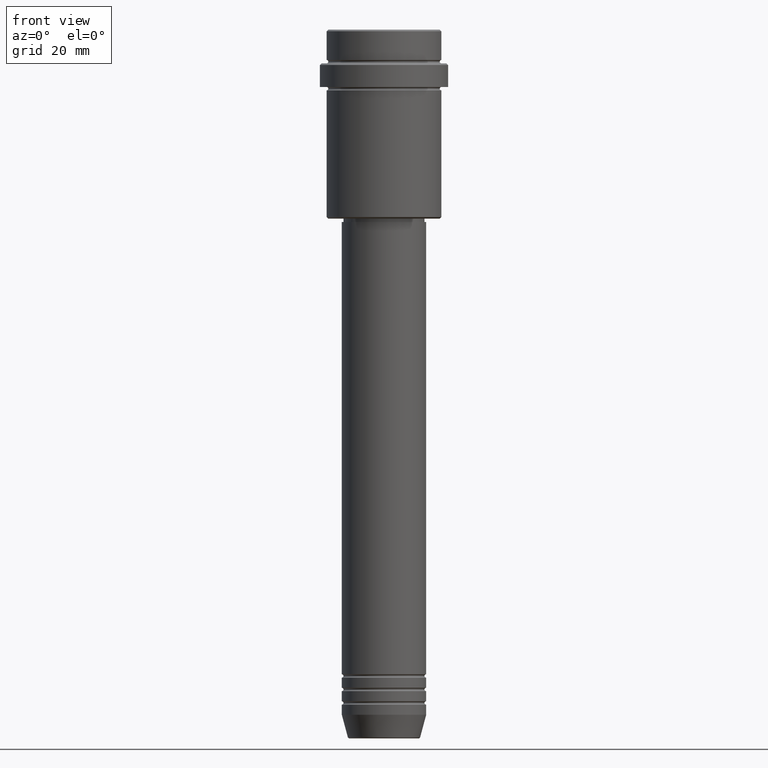
[diagram: clean part render]
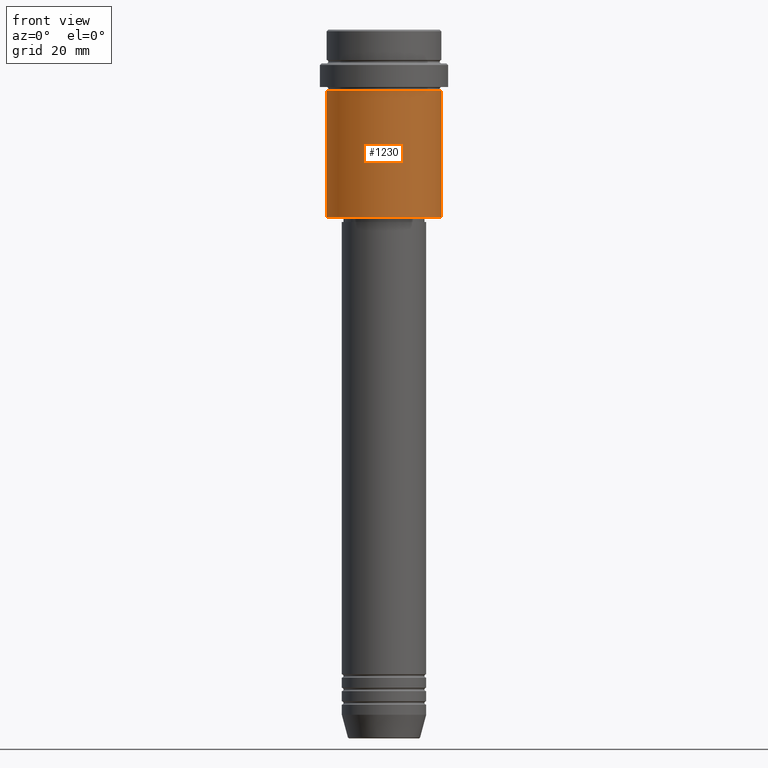
[diagram: same view with one face highlighted and labeled with its STEP entity id]
A machine part, front view. The second image highlights one B-rep face of the part: STEP entity #1230.
In plain terms, the highlighted cylindrical surface (partial cylindrical patch) has radius 17 mm, axis along (-0, -0, 1).
Its self-contained STEP definition (entity closure, byte-faithful):
#59 = VERTEX_POINT ( 'NONE', #499 ) ;
#76 = CARTESIAN_POINT ( 'NONE',  ( 16.99999999999997513, 0.000000000000000000, -18.00000000000000711 ) ) ;
#130 = DIRECTION ( 'NONE',  ( -0.000000000000000000, -0.000000000000000000, 1.000000000000000000 ) ) ;
#133 = DIRECTION ( 'NONE',  ( 1.000000000000000000, 0.000000000000000000, 0.000000000000000000 ) ) ;
#220 = ORIENTED_EDGE ( 'NONE', *, *, #851, .F. ) ;
#286 = CARTESIAN_POINT ( 'NONE',  ( 16.99999999999998579, 0.000000000000000000, 0.000000000000000000 ) ) ;
#298 = AXIS2_PLACEMENT_3D ( 'NONE', #1115, #130, #561 ) ;
#345 = AXIS2_PLACEMENT_3D ( 'NONE', #354, #1330, #133 ) ;
#354 = CARTESIAN_POINT ( 'NONE',  ( 0.000000000000000000, 0.000000000000000000, 0.000000000000000000 ) ) ;
#391 = CARTESIAN_POINT ( 'NONE',  ( -16.99999999999998579, 2.081899558550499096E-15, 0.000000000000000000 ) ) ;
#395 = LINE ( 'NONE', #286, #707 ) ;
#430 = AXIS2_PLACEMENT_3D ( 'NONE', #564, #952, #814 ) ;
#454 = CIRCLE ( 'NONE', #430, 16.99999999999998579 ) ;
#489 = EDGE_CURVE ( 'NONE', #855, #59, #506, .T. ) ;
#499 = CARTESIAN_POINT ( 'NONE',  ( -16.99999999999997513, 2.081899558550498307E-15, -18.00000000000000711 ) ) ;
#504 = DIRECTION ( 'NONE',  ( -0.000000000000000000, -0.000000000000000000, 1.000000000000000000 ) ) ;
#506 = LINE ( 'NONE', #391, #754 ) ;
#561 = DIRECTION ( 'NONE',  ( 1.000000000000000000, 0.000000000000000000, 0.000000000000000000 ) ) ;
#564 = CARTESIAN_POINT ( 'NONE',  ( 0.000000000000000000, 0.000000000000000000, -55.50000000000002132 ) ) ;
#586 = VERTEX_POINT ( 'NONE', #76 ) ;
#587 = CYLINDRICAL_SURFACE ( 'NONE', #345, 16.99999999999998579 ) ;
#604 = DIRECTION ( 'NONE',  ( -0.000000000000000000, -0.000000000000000000, 1.000000000000000000 ) ) ;
#707 = VECTOR ( 'NONE', #504, 1000.000000000000000 ) ;
#754 = VECTOR ( 'NONE', #604, 1000.000000000000000 ) ;
#770 = CIRCLE ( 'NONE', #298, 16.99999999999997513 ) ;
#814 = DIRECTION ( 'NONE',  ( -1.000000000000000000, 0.000000000000000000, 0.000000000000000000 ) ) ;
#835 = CARTESIAN_POINT ( 'NONE',  ( 16.99999999999998579, 0.000000000000000000, -55.50000000000002132 ) ) ;
#851 = EDGE_CURVE ( 'NONE', #59, #586, #770, .T. ) ;
#855 = VERTEX_POINT ( 'NONE', #1006 ) ;
#909 = ORIENTED_EDGE ( 'NONE', *, *, #489, .F. ) ;
#935 = EDGE_CURVE ( 'NONE', #1309, #586, #395, .T. ) ;
#952 = DIRECTION ( 'NONE',  ( -0.000000000000000000, -0.000000000000000000, 1.000000000000000000 ) ) ;
#996 = ORIENTED_EDGE ( 'NONE', *, *, #1290, .T. ) ;
#1006 = CARTESIAN_POINT ( 'NONE',  ( -16.99999999999998579, 2.081899558550499096E-15, -55.50000000000002132 ) ) ;
#1096 = ORIENTED_EDGE ( 'NONE', *, *, #935, .T. ) ;
#1115 = CARTESIAN_POINT ( 'NONE',  ( 0.000000000000000000, 0.000000000000000000, -18.00000000000000711 ) ) ;
#1140 = FACE_OUTER_BOUND ( 'NONE', #1344, .T. ) ;
#1230 = ADVANCED_FACE ( 'NONE', ( #1140 ), #587, .T. ) ;
#1290 = EDGE_CURVE ( 'NONE', #855, #1309, #454, .T. ) ;
#1309 = VERTEX_POINT ( 'NONE', #835 ) ;
#1330 = DIRECTION ( 'NONE',  ( -0.000000000000000000, -0.000000000000000000, 1.000000000000000000 ) ) ;
#1344 = EDGE_LOOP ( 'NONE', ( #909, #996, #1096, #220 ) ) ;